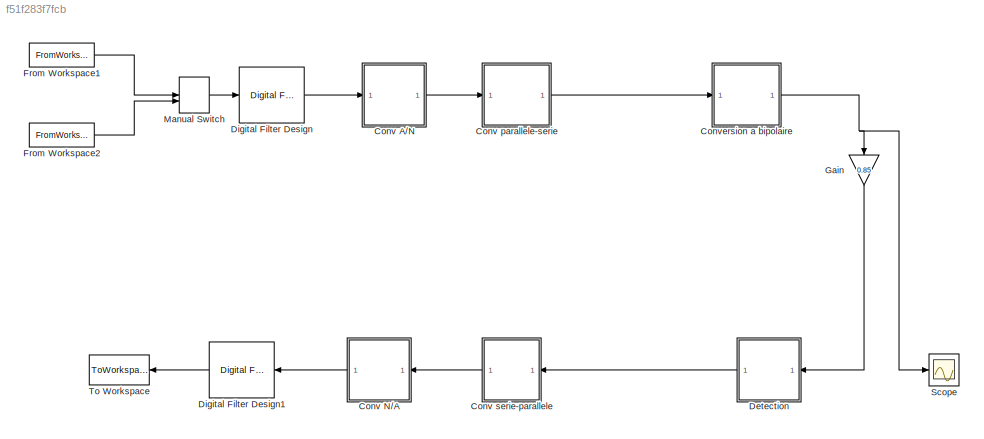
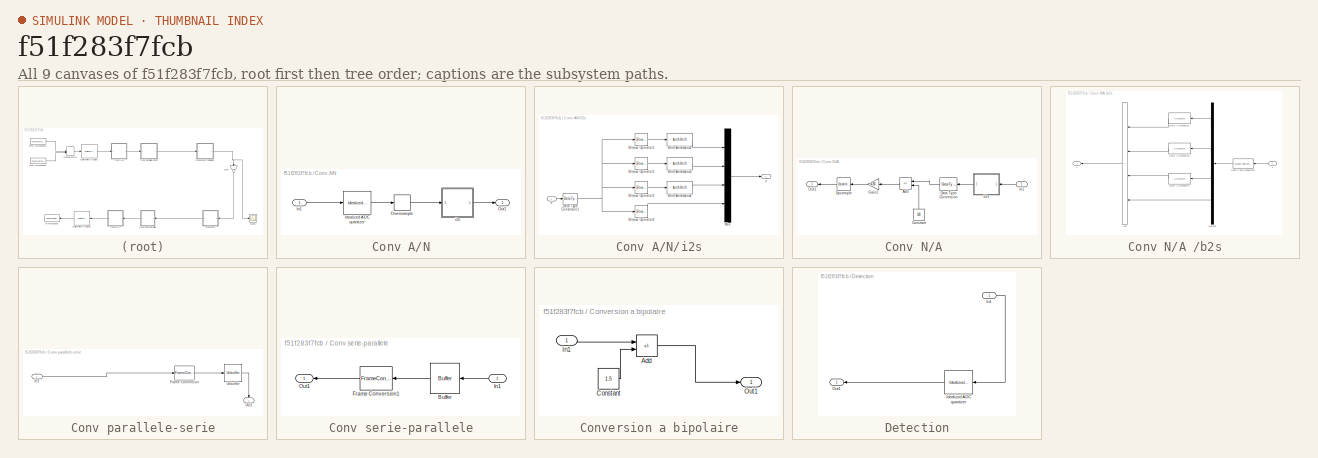
[diagram: thumbnail index - all 9 canvases of the model, root first then tree order]
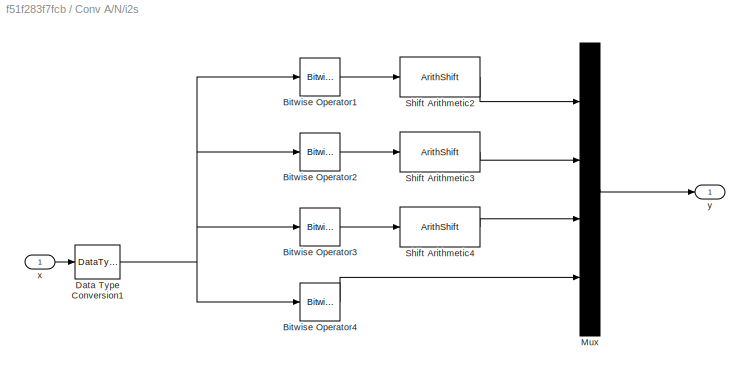
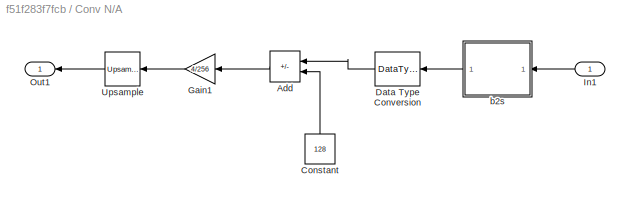
MODEL slx_f51f283f7fcb
KIND model
CONFIG AbsTol = auto
CONFIG EnableMultiTasking = on
CONFIG FixedStep = auto
CONFIG MaxStep = auto
CONFIG MinStep = auto
CONFIG RelTol = 1e-3
CONFIG SampleTimeConstraint = Unconstrained
CONFIG SolverName = FixedStepDiscrete
CONFIG StartTime = 0.0
CONFIG StopTime = 8.75
BLOCK [SubSystem] Conv A//N
  Ports = [1, 1]
  RequestExecContextInheritance = off
BLOCK [DownSample] Conv A//N/Downsample
  InputProcessing = Elements as channels (sample based)
  RateOptions = Allow multirate processing
  UserDataPersistent = on
BLOCK [Reference] Conv A//N/Idealized ADC quantizer  REF=simulink_extras/Additional
Discrete/Idealized ADC quantizer
  AttributesFormatString = (settings: %<NumberOfConverterBits>-bit converter\nVmin: %<Vmin>, Vmax: %<Vmax>)
  Ports = [1, 1]
  SourceBlock = simulink_extras/Additional\nDiscrete/Idealized ADC quantizer
  SourceProductBaseCode = SL
  SourceType = IdealADC
BLOCK [Inport] Conv A//N/In1
BLOCK [Outport] Conv A//N/Out1
  VectorParamsAs1DForOutWhenUnconnected = off
BLOCK [SubSystem] Conv A//N/i2s
  Ports = [1, 1]
  RequestExecContextInheritance = off
BLOCK [Reference] Conv A//N/i2s/Bitwise Operator1  REF=simulink/Logic and Bit
Operations/Bitwise
Operator
  Ports = [1, 1]
  SourceBlock = simulink/Logic and Bit\nOperations/Bitwise\nOperator
  SourceProductBaseCode = SL
  SourceType = Bitwise Operator
BLOCK [Reference] Conv A//N/i2s/Bitwise Operator2  REF=simulink/Logic and Bit
Operations/Bitwise
Operator
  Ports = [1, 1]
  SourceBlock = simulink/Logic and Bit\nOperations/Bitwise\nOperator
  SourceProductBaseCode = SL
  SourceType = Bitwise Operator
BLOCK [Reference] Conv A//N/i2s/Bitwise Operator3  REF=simulink/Logic and Bit
Operations/Bitwise
Operator
  Ports = [1, 1]
  SourceBlock = simulink/Logic and Bit\nOperations/Bitwise\nOperator
  SourceProductBaseCode = SL
  SourceType = Bitwise Operator
BLOCK [Reference] Conv A//N/i2s/Bitwise Operator4  REF=simulink/Logic and Bit
Operations/Bitwise
Operator
  Ports = [1, 1]
  SourceBlock = simulink/Logic and Bit\nOperations/Bitwise\nOperator
  SourceProductBaseCode = SL
  SourceType = Bitwise Operator
BLOCK [DataTypeConversion] Conv A//N/i2s/Data Type Conversion1
  OutDataTypeStr = int16
  RndMeth = Floor
  SaturateOnIntegerOverflow = off
BLOCK [Mux] Conv A//N/i2s/Mux
  DisplayOption = bar
  Ports = [4, 1]
BLOCK [ArithShift] Conv A//N/i2s/Shift Arithmetic2
  BitShiftDirection = Right
  BitShiftNumber = 6
  InputPortMap = u0
  Ports = [1, 1]
BLOCK [ArithShift] Conv A//N/i2s/Shift Arithmetic3
  BitShiftDirection = Right
  BitShiftNumber = 4
  InputPortMap = u0
  Ports = [1, 1]
BLOCK [ArithShift] Conv A//N/i2s/Shift Arithmetic4
  BitShiftDirection = Right
  BitShiftNumber = 2
  InputPortMap = u0
  Ports = [1, 1]
BLOCK [Inport] Conv A//N/i2s/x
BLOCK [Outport] Conv A//N/i2s/y
  VectorParamsAs1DForOutWhenUnconnected = off
BLOCK [SubSystem] Conv N//A 
  Ports = [1, 1]
  RequestExecContextInheritance = off
BLOCK [Sum] Conv N//A /Add
  IconShape = rectangular
  Inputs = +-
  Ports = [2, 1]
BLOCK [Constant] Conv N//A /Constant
  NameLocation = right
  Value = 128
BLOCK [DataTypeConversion] Conv N//A /Data Type Conversion
  OutDataTypeStr = double
  RndMeth = Floor
  SaturateOnIntegerOverflow = off
BLOCK [Gain] Conv N//A /Gain1
  Gain = 4/256
  NameLocation = top
BLOCK [Inport] Conv N//A /In1
BLOCK [Outport] Conv N//A /Out1
  VectorParamsAs1DForOutWhenUnconnected = off
BLOCK [Reference] Conv N//A /Upsample  REF=dspsigops/Upsample
  Ports = [1, 1]
  SourceBlock = dspsigops/Upsample
  SourceProductBaseCode = DS
  SourceType = Upsample
  UserDataPersistent = on
BLOCK [SubSystem] Conv N//A /b2s
  Ports = [1, 1]
  RequestExecContextInheritance = off
BLOCK [Sum] Conv N//A /b2s/Add
  IconShape = rectangular
  Inputs = ++++
  Ports = [4, 1]
BLOCK [DataTypeConversion] Conv N//A /b2s/Data Type Conversion
  OutDataTypeStr = int16
  RndMeth = Round
  SaturateOnIntegerOverflow = off
BLOCK [Demux] Conv N//A /b2s/Demux
  Ports = [1, 4]
BLOCK [ArithShift] Conv N//A /b2s/Shift Arithmetic1
  BitShiftDirection = Left
  BitShiftNumber = 6
  InputPortMap = u0
  Ports = [1, 1]
BLOCK [ArithShift] Conv N//A /b2s/Shift Arithmetic3
  BitShiftDirection = Left
  BitShiftNumber = 4
  InputPortMap = u0
  Ports = [1, 1]
BLOCK [ArithShift] Conv N//A /b2s/Shift Arithmetic7
  BitShiftDirection = Left
  BitShiftNumber = 2
  InputPortMap = u0
  Ports = [1, 1]
BLOCK [Inport] Conv N//A /b2s/x
BLOCK [Outport] Conv N//A /b2s/y
  VectorParamsAs1DForOutWhenUnconnected = off
BLOCK [SubSystem] Conv parallele-serie
  Ports = [1, 1]
  RequestExecContextInheritance = off
BLOCK [FrameConversion] Conv parallele-serie/Frame Conversion
  Ports = [1, 1]
BLOCK [Inport] Conv parallele-serie/In1
BLOCK [Outport] Conv parallele-serie/Out1
  NameLocation = right
  VectorParamsAs1DForOutWhenUnconnected = off
BLOCK [Unbuffer] Conv parallele-serie/Unbuffer
  Ports = [1, 1]
BLOCK [SubSystem] Conv serie-parallele
  Ports = [1, 1]
  RequestExecContextInheritance = off
BLOCK [Buffer] Conv serie-parallele/Buffer
  N = 4
BLOCK [FrameConversion] Conv serie-parallele/Frame Conversion1
  OutFrame = Sample-based
  Ports = [1, 1]
BLOCK [Inport] Conv serie-parallele/In1
BLOCK [Outport] Conv serie-parallele/Out1
  VectorParamsAs1DForOutWhenUnconnected = off
BLOCK [SubSystem] Conversion a bipolaire
  Ports = [1, 1]
  RequestExecContextInheritance = off
BLOCK [Sum] Conversion a bipolaire/Add
  IconShape = rectangular
  Inputs = +-
  Ports = [2, 1]
BLOCK [Constant] Conversion a bipolaire/Constant
  Value = 1.5
BLOCK [Inport] Conversion a bipolaire/In1
BLOCK [Outport] Conversion a bipolaire/Out1
  VectorParamsAs1DForOutWhenUnconnected = off
BLOCK [SubSystem] Detection
  Ports = [1, 1]
  RequestExecContextInheritance = off
BLOCK [Reference] Detection/Idealized ADC quantizer  REF=simulink_extras/Additional
Discrete/Idealized ADC quantizer
  AttributesFormatString = (settings: %<NumberOfConverterBits>-bit converter\nVmin: %<Vmin>, Vmax: %<Vmax>)
  Ports = [1, 1]
  SourceBlock = simulink_extras/Additional\nDiscrete/Idealized ADC quantizer
  SourceProductBaseCode = SL
  SourceType = IdealADC
BLOCK [Inport] Detection/In1
BLOCK [Outport] Detection/Out1
  VectorParamsAs1DForOutWhenUnconnected = off
BLOCK [Reference] Digital Filter Design  REF=dsparch4/Digital
Filter Design
  Ports = [1, 1]
  SourceBlock = dsparch4/Digital\nFilter Design
  SourceProductBaseCode = DS
  SourceType = Digital Filter Design
  UserDataPersistent = on
BLOCK [Reference] Digital Filter Design1  REF=dsparch4/Digital
Filter Design
  Ports = [1, 1]
  SourceBlock = dsparch4/Digital\nFilter Design
  SourceProductBaseCode = DS
  SourceType = Digital Filter Design
  UserDataPersistent = on
BLOCK [FromWorkspace] From Workspace1
  Interpolate = off
  OutputAfterFinalValue = Setting to zero
  SampleTime = 1/16000
  VariableName = Sonm16
BLOCK [FromWorkspace] From Workspace2
  Interpolate = off
  OutputAfterFinalValue = Setting to zero
  SampleTime = 1/16000
  VariableName = Sonf16
BLOCK [Gain] Gain
  Gain = 0.85
  NameLocation = left
BLOCK [ManualSwitch] Manual Switch
BLOCK [Scope] Scope
  Floating = off
  NumInputPorts = 1
  Ports = [1]
  ScopeSpecificationString = Simulink.scopes.TimeScopeBlockCfg('CurrentConfiguration', extmgr.ConfigurationSet(extmgr.Configuration('Core','General UI',true),extmgr.Configuration('Core','Source UI',true),extmgr.Configuration('Sources','WiredSimulink',true),extmgr.Configuration('Visuals','Time Domain',true,'SerializedDisplays',{struct('MinYLimReal','-1.59375','MaxYLimReal','1.59375','YLabelReal','','MinYLimMag','0.00000','MaxY...<+1420ch>
BLOCK [ToWorkspace] To Workspace
  MaxDataPoints = inf
  Ports = [1]
  SampleTime = -1
  Save2DSignal = 2-D array (concatenate along first dimension)
  VariableName = y
LINE Conv A//N/Downsample:1 -> Conv A//N/i2s:1
LINE Conv A//N/Idealized ADC quantizer:1 -> Conv A//N/Downsample:1
LINE Conv A//N/In1:1 -> Conv A//N/Idealized ADC quantizer:1
LINE Conv A//N/i2s/Bitwise Operator1:1 -> Conv A//N/i2s/Shift Arithmetic2:1
LINE Conv A//N/i2s/Bitwise Operator2:1 -> Conv A//N/i2s/Shift Arithmetic3:1
LINE Conv A//N/i2s/Bitwise Operator3:1 -> Conv A//N/i2s/Shift Arithmetic4:1
LINE Conv A//N/i2s/Bitwise Operator4:1 -> Conv A//N/i2s/Mux:4
NET Conv A//N/i2s/Data Type Conversion1:1 -> Conv A//N/i2s/Bitwise Operator1:1, Conv A//N/i2s/Bitwise Operator2:1, Conv A//N/i2s/Bitwise Operator3:1, Conv A//N/i2s/Bitwise Operator4:1
LINE Conv A//N/i2s/Mux:1 -> Conv A//N/i2s/y:1
LINE Conv A//N/i2s/Shift Arithmetic2:1 -> Conv A//N/i2s/Mux:1
LINE Conv A//N/i2s/Shift Arithmetic3:1 -> Conv A//N/i2s/Mux:2
LINE Conv A//N/i2s/Shift Arithmetic4:1 -> Conv A//N/i2s/Mux:3
LINE Conv A//N/i2s/x:1 -> Conv A//N/i2s/Data Type Conversion1:1
LINE Conv A//N/i2s:1 -> Conv A//N/Out1:1
LINE Conv A//N:1 -> Conv parallele-serie:1
LINE Conv N//A /Add:1 -> Conv N//A /Gain1:1
LINE Conv N//A /Constant:1 -> Conv N//A /Add:2
LINE Conv N//A /Data Type Conversion:1 -> Conv N//A /Add:1
LINE Conv N//A /Gain1:1 -> Conv N//A /Upsample:1
LINE Conv N//A /In1:1 -> Conv N//A /b2s:1
LINE Conv N//A /Upsample:1 -> Conv N//A /Out1:1
LINE Conv N//A /b2s/Add:1 -> Conv N//A /b2s/y:1
LINE Conv N//A /b2s/Data Type Conversion:1 -> Conv N//A /b2s/Demux:1
LINE Conv N//A /b2s/Demux:1 -> Conv N//A /b2s/Shift Arithmetic1:1
LINE Conv N//A /b2s/Demux:2 -> Conv N//A /b2s/Shift Arithmetic3:1
LINE Conv N//A /b2s/Demux:3 -> Conv N//A /b2s/Shift Arithmetic7:1
LINE Conv N//A /b2s/Demux:4 -> Conv N//A /b2s/Add:4
LINE Conv N//A /b2s/Shift Arithmetic1:1 -> Conv N//A /b2s/Add:1
LINE Conv N//A /b2s/Shift Arithmetic3:1 -> Conv N//A /b2s/Add:2
LINE Conv N//A /b2s/Shift Arithmetic7:1 -> Conv N//A /b2s/Add:3
LINE Conv N//A /b2s/x:1 -> Conv N//A /b2s/Data Type Conversion:1
LINE Conv N//A /b2s:1 -> Conv N//A /Data Type Conversion:1
LINE Conv N//A :1 -> Digital Filter Design1:1
LINE Conv parallele-serie/Frame Conversion:1 -> Conv parallele-serie/Unbuffer:1
LINE Conv parallele-serie/In1:1 -> Conv parallele-serie/Frame Conversion:1
LINE Conv parallele-serie/Unbuffer:1 -> Conv parallele-serie/Out1:1
LINE Conv parallele-serie:1 -> Conversion a bipolaire:1
LINE Conv serie-parallele/Buffer:1 -> Conv serie-parallele/Frame Conversion1:1
LINE Conv serie-parallele/Frame Conversion1:1 -> Conv serie-parallele/Out1:1
LINE Conv serie-parallele/In1:1 -> Conv serie-parallele/Buffer:1
LINE Conv serie-parallele:1 -> Conv N//A :1
LINE Conversion a bipolaire/Add:1 -> Conversion a bipolaire/Out1:1
LINE Conversion a bipolaire/Constant:1 -> Conversion a bipolaire/Add:2
LINE Conversion a bipolaire/In1:1 -> Conversion a bipolaire/Add:1
NET Conversion a bipolaire:1 -> Gain:1, Scope:1
LINE Detection/Idealized ADC quantizer:1 -> Detection/Out1:1
LINE Detection/In1:1 -> Detection/Idealized ADC quantizer:1
LINE Detection:1 -> Conv serie-parallele:1
LINE Digital Filter Design1:1 -> To Workspace:1
LINE Digital Filter Design:1 -> Conv A//N:1
LINE From Workspace1:1 -> Manual Switch:1
LINE From Workspace2:1 -> Manual Switch:2
LINE Gain:1 -> Detection:1
LINE Manual Switch:1 -> Digital Filter Design:1
note: NET lines group one-source signal fan-out (src -> all destinations, sorted); 1:1 wires keep LINE
